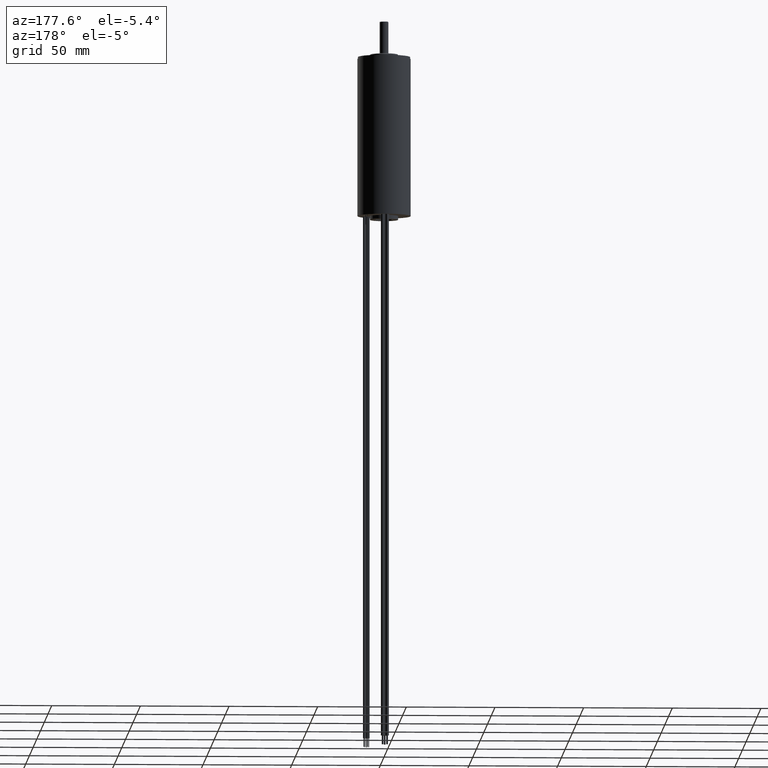
[diagram: clean part render]
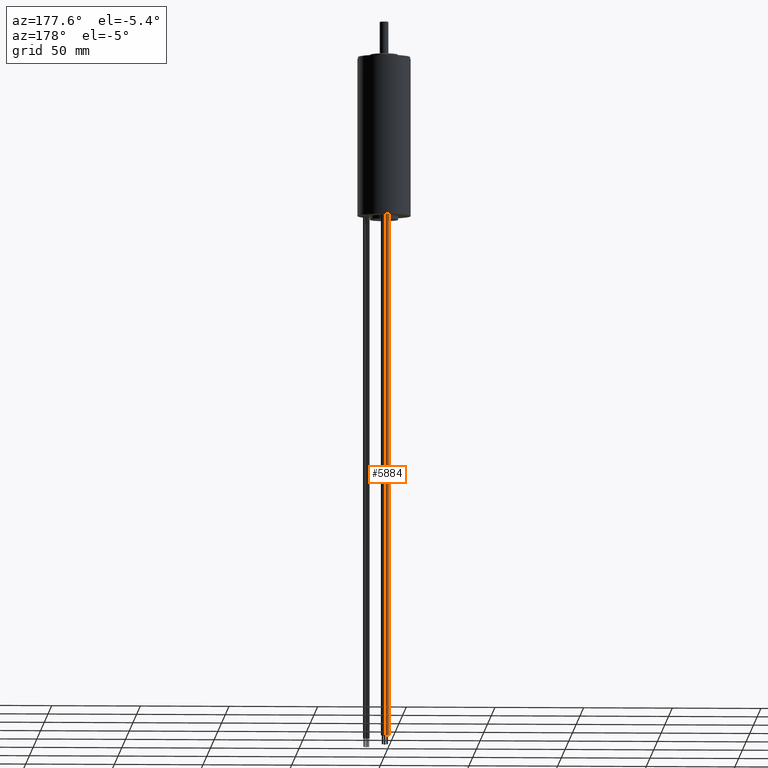
[diagram: same view with one face highlighted and labeled with its STEP entity id]
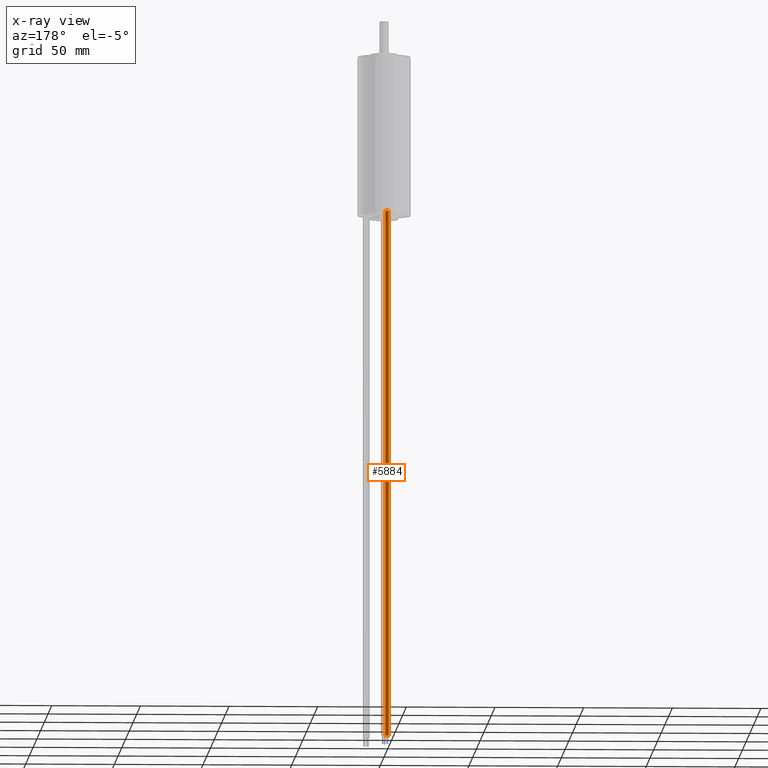
[diagram: x-ray of the same camera — body ghosted, the highlighted face saturated]
A machine part, auxiliary view. The second image highlights one B-rep face of the part: STEP entity #5884.
The next image is the same camera in x-ray: the body ghosted, the highlighted face saturated — about 0% of this face is hidden behind the body in this view.
In plain terms, the highlighted cylindrical surface (bore or boss wall) has radius 1 mm, axis along (-0, 0, -1).
Its self-contained STEP definition (entity closure, byte-faithful):
#182 = FACE_OUTER_BOUND ( 'NONE', #3550, .T. ) ;
#268 = DIRECTION ( 'NONE',  ( 0.0000000000000000000, 0.0000000000000000000, 1.000000000000000000 ) ) ;
#356 = DIRECTION ( 'NONE',  ( -0.2368187887778017975, 0.9715538385914673780, 0.0000000000000000000 ) ) ;
#885 = CARTESIAN_POINT ( 'NONE',  ( -1.500875886376008328, 12.90344839512281183, 0.8499999999999996447 ) ) ;
#893 = CARTESIAN_POINT ( 'NONE',  ( -1.264057097598206392, 11.93189455653134523, 0.8499999999999996447 ) ) ;
#1339 = AXIS2_PLACEMENT_3D ( 'NONE', #4065, #268, #356 ) ;
#1663 = EDGE_LOOP ( 'NONE', ( #3152 ) ) ;
#1753 = AXIS2_PLACEMENT_3D ( 'NONE', #893, #5403, #2807 ) ;
#1779 = DIRECTION ( 'NONE',  ( -0.0000000000000000000, 0.0000000000000000000, -1.000000000000000000 ) ) ;
#2807 = DIRECTION ( 'NONE',  ( -0.2368187887778017975, 0.9715538385914673780, 0.0000000000000000000 ) ) ;
#3148 = CYLINDRICAL_SURFACE ( 'NONE', #7020, 0.9999999999999996669 ) ;
#3152 = ORIENTED_EDGE ( 'NONE', *, *, #4090, .F. ) ;
#3550 = EDGE_LOOP ( 'NONE', ( #3799 ) ) ;
#3631 = CIRCLE ( 'NONE', #1753, 0.9999999999999996669 ) ;
#3714 = CIRCLE ( 'NONE', #1339, 0.9999999999999996669 ) ;
#3799 = ORIENTED_EDGE ( 'NONE', *, *, #4049, .T. ) ;
#4049 = EDGE_CURVE ( 'NONE', #4259, #4259, #3714, .T. ) ;
#4065 = CARTESIAN_POINT ( 'NONE',  ( -1.264057097598206392, 11.93189455653134523, -296.0000000000000000 ) ) ;
#4090 = EDGE_CURVE ( 'NONE', #4648, #4648, #3631, .T. ) ;
#4155 = FACE_OUTER_BOUND ( 'NONE', #1663, .T. ) ;
#4259 = VERTEX_POINT ( 'NONE', #7353 ) ;
#4302 = CARTESIAN_POINT ( 'NONE',  ( -1.264057097598206392, 11.93189455653134523, 0.8499999999999996447 ) ) ;
#4648 = VERTEX_POINT ( 'NONE', #885 ) ;
#4973 = DIRECTION ( 'NONE',  ( 0.2368187887778017975, -0.9715538385914673780, 0.0000000000000000000 ) ) ;
#5403 = DIRECTION ( 'NONE',  ( 0.0000000000000000000, 0.0000000000000000000, 1.000000000000000000 ) ) ;
#5884 = ADVANCED_FACE ( 'NONE', ( #182, #4155 ), #3148, .T. ) ;
#7020 = AXIS2_PLACEMENT_3D ( 'NONE', #4302, #1779, #4973 ) ;
#7353 = CARTESIAN_POINT ( 'NONE',  ( -1.500875886376008328, 12.90344839512281183, -296.0000000000000000 ) ) ;